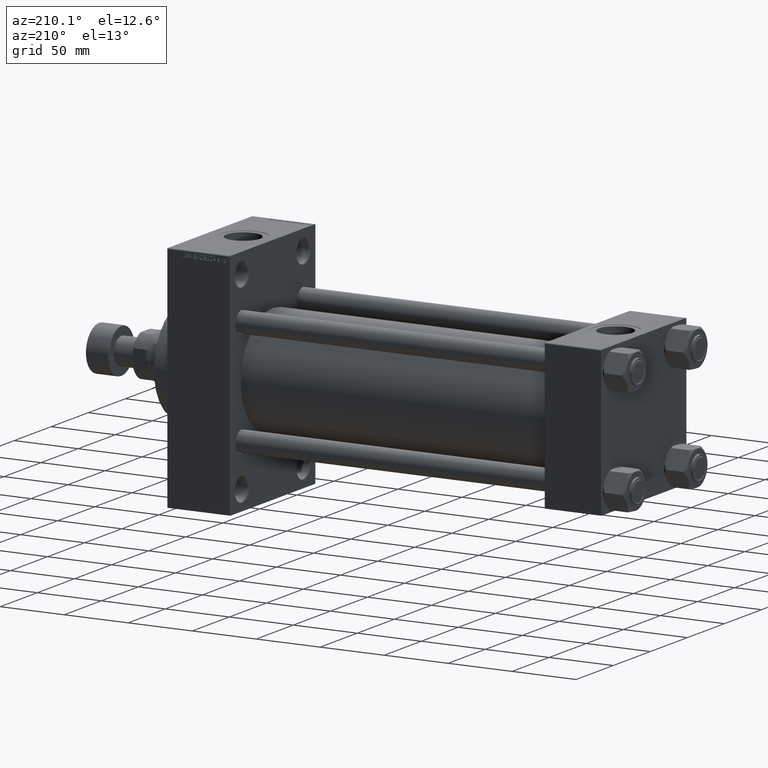
[diagram: clean part render]
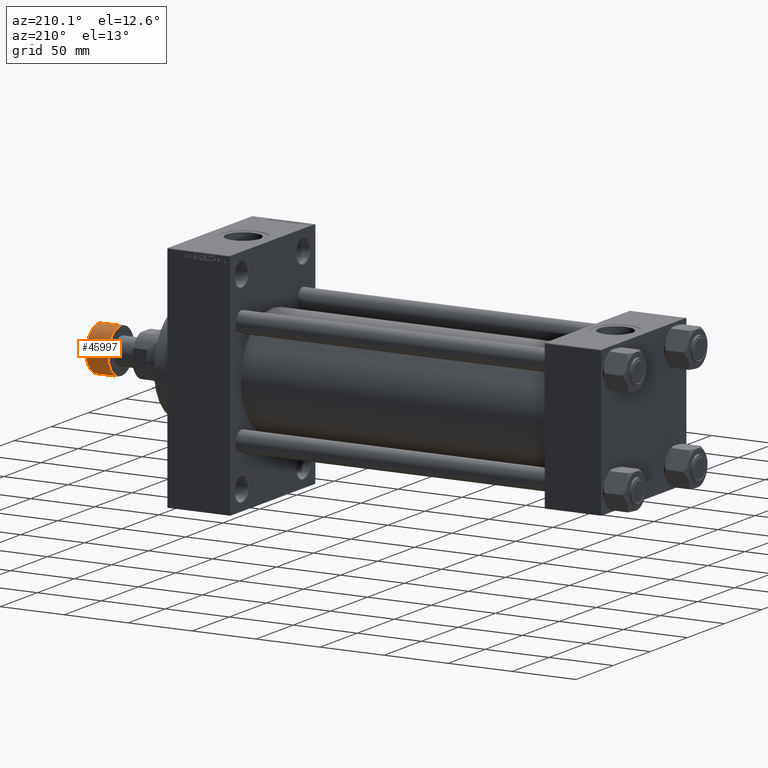
[diagram: same view with one face highlighted and labeled with its STEP entity id]
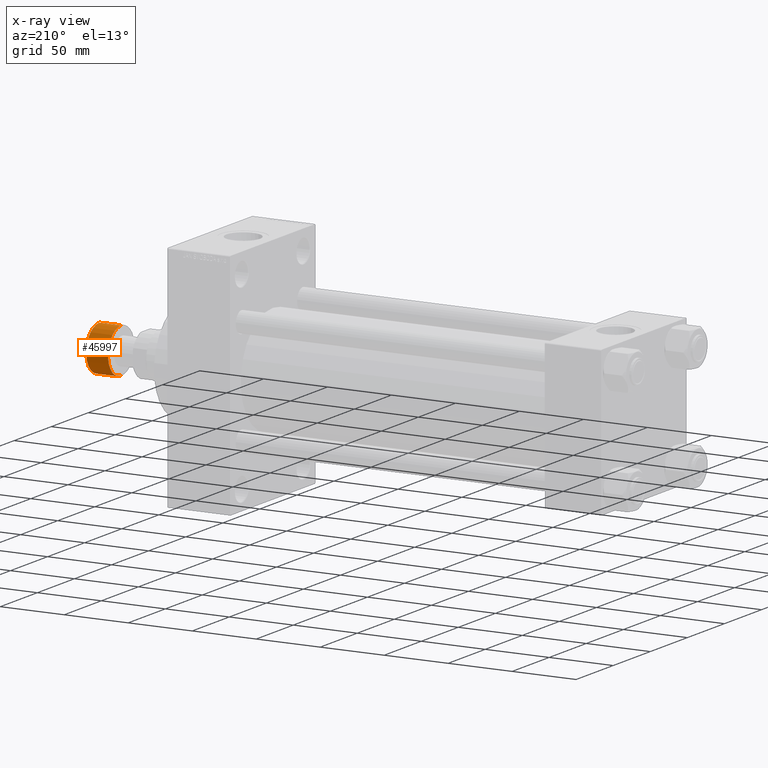
[diagram: x-ray of the same camera — body ghosted, the highlighted face saturated]
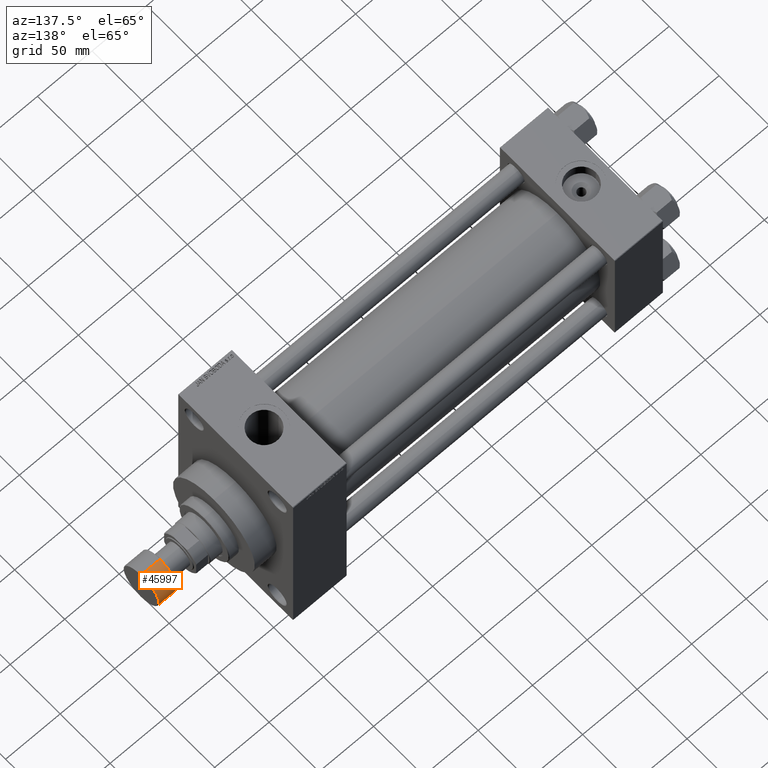
[diagram: same view with one face highlighted and labeled with its STEP entity id]
A machine part, auxiliary view. The second image highlights one B-rep face of the part: STEP entity #45997.
The next image is the same camera in x-ray: the body ghosted, the highlighted face saturated — about 0% of this face is hidden behind the body in this view.
A second angle (auxiliary view) of the same face is appended — the face is thin or edge-on in the first view.
In plain terms, the highlighted cylindrical surface (edge-blend (fillet) strip) has radius 17.5 mm, axis along (1, 0, 0).
Its self-contained STEP definition (entity closure, byte-faithful):
#1915 = EDGE_CURVE ( 'NONE', #32671, #33628, #44759, .T. ) ;
#2671 = ORIENTED_EDGE ( 'NONE', *, *, #36756, .T. ) ;
#3463 = DIRECTION ( 'NONE',  ( 0.000000000000000000, 0.000000000000000000, 1.000000000000000000 ) ) ;
#4666 = VERTEX_POINT ( 'NONE', #9965 ) ;
#5743 = CARTESIAN_POINT ( 'NONE',  ( 17.50000000000000355, 0.000000000000000000, -0.5000000000000004441 ) ) ;
#5752 = CIRCLE ( 'NONE', #13483, 17.50000000000000355 ) ;
#6532 = VECTOR ( 'NONE', #41289, 1000.000000000000000 ) ;
#7327 = DIRECTION ( 'NONE',  ( 1.000000000000000000, 0.000000000000000000, 0.000000000000000000 ) ) ;
#9529 = VECTOR ( 'NONE', #35248, 1000.000000000000000 ) ;
#9965 = CARTESIAN_POINT ( 'NONE',  ( -17.50000000000000355, 2.143131898507868643E-15, -17.49999999999999645 ) ) ;
#10167 = DIRECTION ( 'NONE',  ( 1.000000000000000000, 0.000000000000000000, 0.000000000000000000 ) ) ;
#10506 = AXIS2_PLACEMENT_3D ( 'NONE', #43527, #32800, #10167 ) ;
#11403 = CARTESIAN_POINT ( 'NONE',  ( 17.50000000000000355, 0.000000000000000000, -18.00000000000000000 ) ) ;
#11522 = EDGE_LOOP ( 'NONE', ( #24212, #33584, #2671, #41428 ) ) ;
#13483 = AXIS2_PLACEMENT_3D ( 'NONE', #14860, #29478, #7327 ) ;
#13701 = CIRCLE ( 'NONE', #10506, 17.50000000000000355 ) ;
#14860 = CARTESIAN_POINT ( 'NONE',  ( 0.000000000000000000, 0.000000000000000000, -17.49999999999999645 ) ) ;
#14887 = CARTESIAN_POINT ( 'NONE',  ( 0.000000000000000000, 0.000000000000000000, -18.00000000000000000 ) ) ;
#16702 = EDGE_CURVE ( 'NONE', #32671, #4666, #5752, .T. ) ;
#18415 = VERTEX_POINT ( 'NONE', #21798 ) ;
#18666 = LINE ( 'NONE', #33495, #6532 ) ;
#21257 = EDGE_CURVE ( 'NONE', #4666, #18415, #18666, .T. ) ;
#21798 = CARTESIAN_POINT ( 'NONE',  ( -17.50000000000000355, 2.143131898507868643E-15, -0.5000000000000004441 ) ) ;
#24212 = ORIENTED_EDGE ( 'NONE', *, *, #16702, .T. ) ;
#25487 = CARTESIAN_POINT ( 'NONE',  ( 17.50000000000000355, 0.000000000000000000, -17.49999999999999645 ) ) ;
#29478 = DIRECTION ( 'NONE',  ( 0.000000000000000000, 0.000000000000000000, 1.000000000000000000 ) ) ;
#32671 = VERTEX_POINT ( 'NONE', #25487 ) ;
#32800 = DIRECTION ( 'NONE',  ( -0.000000000000000000, -0.000000000000000000, -1.000000000000000000 ) ) ;
#33495 = CARTESIAN_POINT ( 'NONE',  ( -17.50000000000000355, 2.143131898507868643E-15, -18.00000000000000000 ) ) ;
#33584 = ORIENTED_EDGE ( 'NONE', *, *, #21257, .T. ) ;
#33628 = VERTEX_POINT ( 'NONE', #5743 ) ;
#35248 = DIRECTION ( 'NONE',  ( 0.000000000000000000, 0.000000000000000000, 1.000000000000000000 ) ) ;
#36756 = EDGE_CURVE ( 'NONE', #18415, #33628, #13701, .T. ) ;
#40467 = DIRECTION ( 'NONE',  ( 1.000000000000000000, 0.000000000000000000, 0.000000000000000000 ) ) ;
#41289 = DIRECTION ( 'NONE',  ( 0.000000000000000000, 0.000000000000000000, 1.000000000000000000 ) ) ;
#41428 = ORIENTED_EDGE ( 'NONE', *, *, #1915, .F. ) ;
#42694 = CYLINDRICAL_SURFACE ( 'NONE', #46598, 17.50000000000000355 ) ;
#43527 = CARTESIAN_POINT ( 'NONE',  ( 0.000000000000000000, 0.000000000000000000, -0.5000000000000004441 ) ) ;
#44759 = LINE ( 'NONE', #11403, #9529 ) ;
#45997 = ADVANCED_FACE ( 'NONE', ( #46345 ), #42694, .T. ) ;
#46345 = FACE_OUTER_BOUND ( 'NONE', #11522, .T. ) ;
#46598 = AXIS2_PLACEMENT_3D ( 'NONE', #14887, #3463, #40467 ) ;